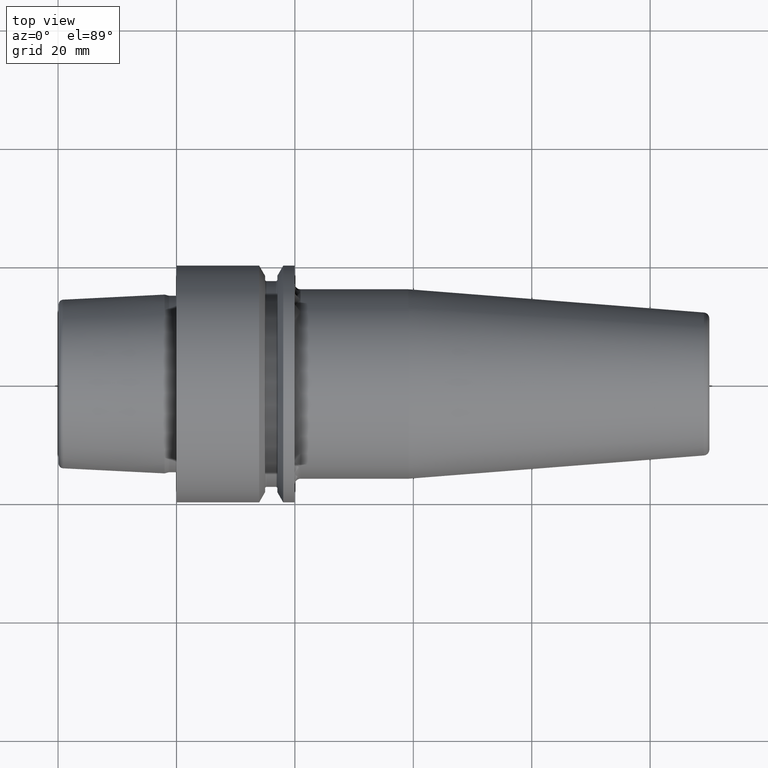
[diagram: clean part render]
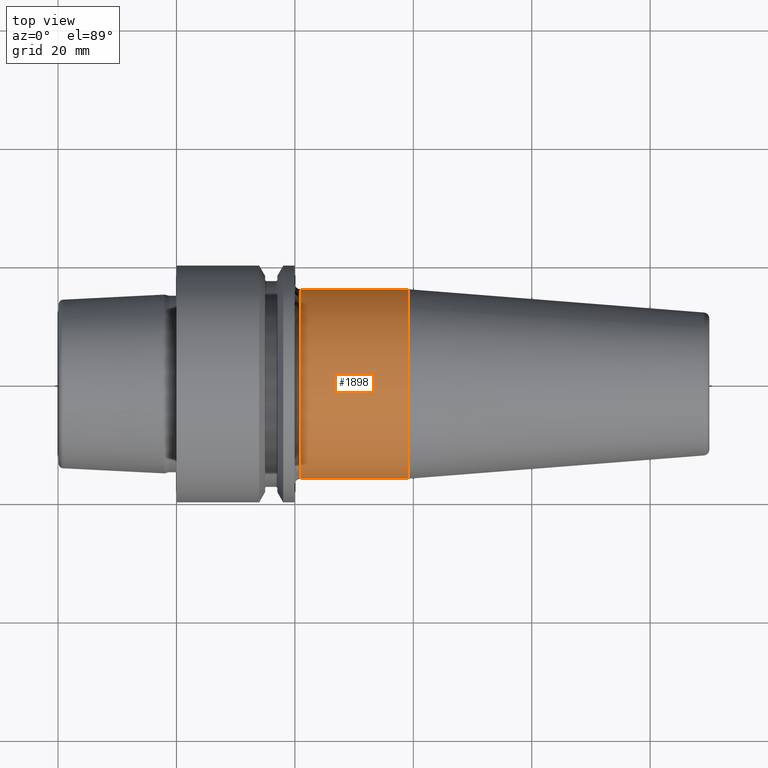
[diagram: same view with one face highlighted and labeled with its STEP entity id]
A machine part, top view. The second image highlights one B-rep face of the part: STEP entity #1898.
In plain terms, the highlighted cylindrical surface (partial cylindrical patch) has radius 16 mm, axis along (1, 0, 0).
Its self-contained STEP definition (entity closure, byte-faithful):
#642=CARTESIAN_POINT('',(2.095E1,0.E0,0.E0));
#643=DIRECTION('',(1.E0,0.E0,0.E0));
#644=DIRECTION('',(0.E0,1.E0,0.E0));
#645=AXIS2_PLACEMENT_3D('',#642,#643,#644);
#647=CARTESIAN_POINT('',(3.917518105530E1,0.E0,0.E0));
#648=DIRECTION('',(1.E0,0.E0,0.E0));
#649=DIRECTION('',(0.E0,1.E0,0.E0));
#650=AXIS2_PLACEMENT_3D('',#647,#648,#649);
#657=DIRECTION('',(-1.E0,0.E0,-1.267876200584E-13));
#658=VECTOR('',#657,1.822518105530E1);
#659=CARTESIAN_POINT('',(3.917518105530E1,-1.6E1,0.E0));
#660=LINE('',#659,#658);
#666=DIRECTION('',(-1.E0,0.E0,1.266657495133E-13));
#667=VECTOR('',#666,1.822518105530E1);
#668=CARTESIAN_POINT('',(3.917518105530E1,1.6E1,0.E0));
#669=LINE('',#668,#667);
#888=CARTESIAN_POINT('',(3.917518105530E1,1.6E1,0.E0));
#889=CARTESIAN_POINT('',(3.917518105530E1,-1.6E1,0.E0));
#890=VERTEX_POINT('',#888);
#891=VERTEX_POINT('',#889);
#896=CARTESIAN_POINT('',(2.095E1,-1.6E1,0.E0));
#897=CARTESIAN_POINT('',(2.095E1,1.6E1,0.E0));
#898=VERTEX_POINT('',#896);
#899=VERTEX_POINT('',#897);
#1884=CARTESIAN_POINT('',(1.64475E1,0.E0,0.E0));
#1885=DIRECTION('',(1.E0,0.E0,0.E0));
#1886=DIRECTION('',(0.E0,-1.E0,0.E0));
#1887=AXIS2_PLACEMENT_3D('',#1884,#1885,#1886);
#1888=CYLINDRICAL_SURFACE('',#1887,1.6E1);
#1889=ORIENTED_EDGE('',*,*,#1878,.F.);
#1891=ORIENTED_EDGE('',*,*,#1890,.F.);
#1893=ORIENTED_EDGE('',*,*,#1892,.T.);
#1895=ORIENTED_EDGE('',*,*,#1894,.T.);
#1896=EDGE_LOOP('',(#1889,#1891,#1893,#1895));
#1897=FACE_OUTER_BOUND('',#1896,.F.);
#1898=ADVANCED_FACE('',(#1897),#1888,.T.);
#646=CIRCLE('',#645,1.6E1);
#651=CIRCLE('',#650,1.6E1);
#1878=EDGE_CURVE('',#899,#898,#646,.T.);
#1890=EDGE_CURVE('',#890,#899,#669,.T.);
#1892=EDGE_CURVE('',#890,#891,#651,.T.);
#1894=EDGE_CURVE('',#891,#898,#660,.T.);